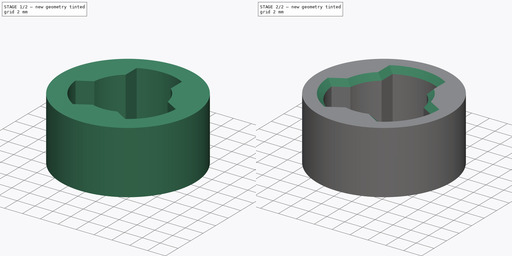
[diagram: build sequence overview — one tinted view per stage of 2, left to right]
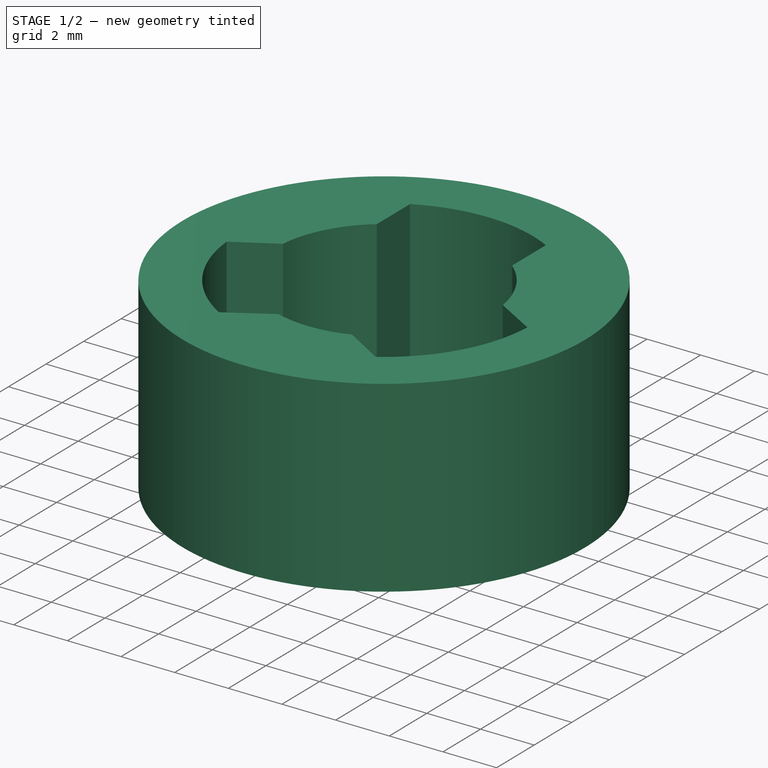
[diagram: stage 1 of 2 — iso view after this stage's code; geometry added in this stage tinted green]
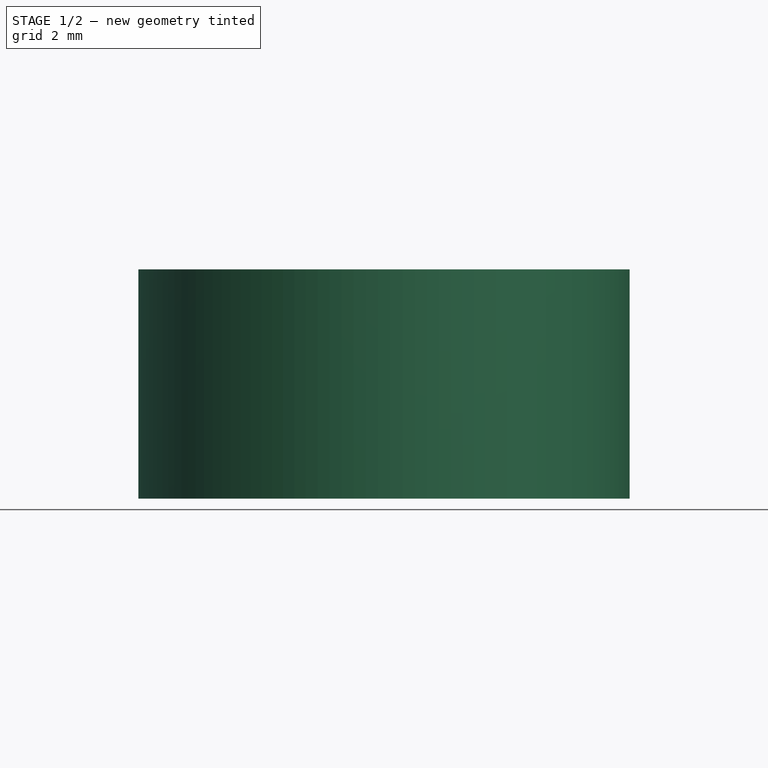
[diagram: stage 1 of 2 — front view after this stage's code; geometry added in this stage tinted green]
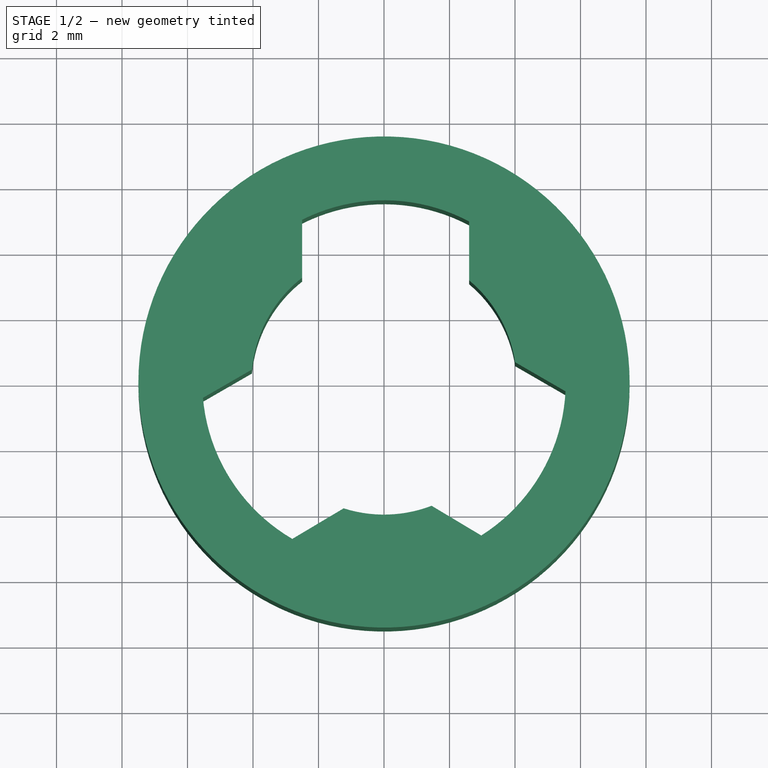
[diagram: stage 1 of 2 — top view after this stage's code; geometry added in this stage tinted green]
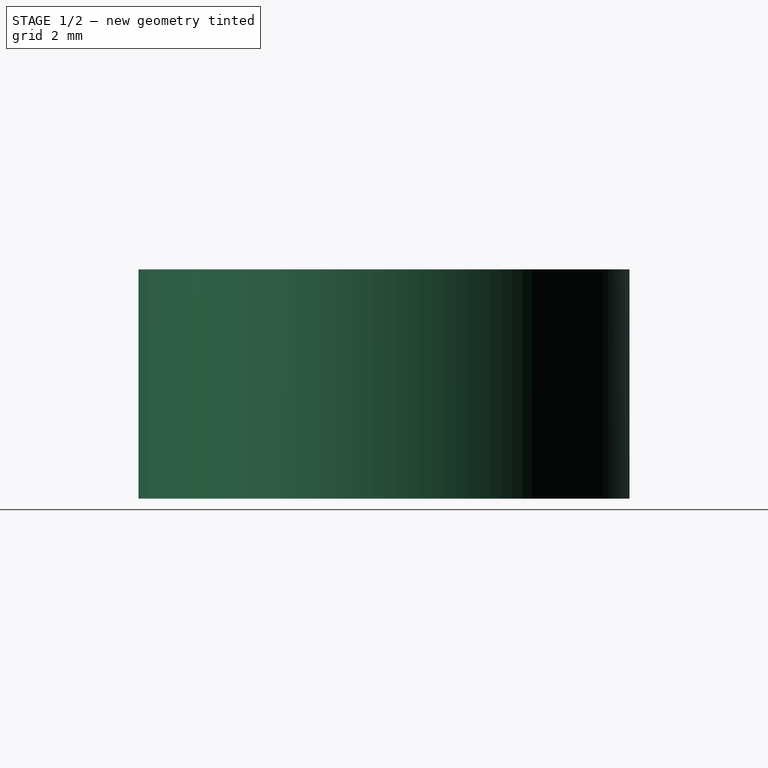
[diagram: stage 1 of 2 — right view after this stage's code; geometry added in this stage tinted green]
FCSTD DOCUMENT  (FreeCAD 0.19R24276 (Git))
Label: Knife_holder_bldc_part_2_v1_wide
License: All rights reserved
LicenseURL: http://en.wikipedia.org/wiki/All_rights_reserved
objects: Sketcher::SketchObject×1, PartDesign::Pad×1, PartDesign::Chamfer×1, PartDesign::Body×1
note: 6 computed .brp shape members not serialized (recipe doc carries the construction recipe); baked Part::Feature solids carry a one-line shape summary decoded from their .brp

FEATURE [Sketcher::SketchObject] Sketch
  FullyConstrained = false
  MapMode = 5
  Support = -> [XY_Plane]
  sketch-geometry (13):
    g0: ArcOfCircle CenterX=0 CenterY=0 CenterZ=0 NormalX=0 NormalY=0 NormalZ=1 AngleXU=0 Radius=4.05 StartAngle=2.23608 EndAngle=3.04749
    g1: ArcOfCircle CenterX=0 CenterY=0 CenterZ=0 NormalX=0 NormalY=0 NormalZ=1 AngleXU=0 Radius=5.55 StartAngle=1.08329 EndAngle=2.03807
    g2: LineSegment StartX=2.97035 StartY=-4.68823 StartZ=0 EndX=1.45426 EndY=-3.7799 EndZ=0
    g3: LineSegment StartX=4.00468 StartY=0.604177 StartZ=0 EndX=5.5427 EndY=-0.284484 EndZ=0
    g4: ArcOfCircle CenterX=0 CenterY=0 CenterZ=0 NormalX=0 NormalY=0 NormalZ=1 AngleXU=0 Radius=4.05 StartAngle=0.149739 EndAngle=0.873809
    g5: LineSegment StartX=-5.52889 StartY=-0.483634 StartZ=0 EndX=-4.03208 EndY=0.380567 EndZ=0
    g6: ArcOfCircle CenterX=0 CenterY=0 CenterZ=0 NormalX=0 NormalY=0 NormalZ=1 AngleXU=0 Radius=5.55 StartAngle=5.27713 EndAngle=6.2319
    g7: ArcOfCircle CenterX=0 CenterY=0 CenterZ=0 NormalX=0 NormalY=0 NormalZ=1 AngleXU=0 Radius=5.55 StartAngle=3.22884 EndAngle=4.18362
    g8: LineSegment StartX=-1.23227 StartY=-3.85798 StartZ=0 EndX=-2.79982 EndY=-4.79202 EndZ=0
    g9: ArcOfCircle CenterX=0 CenterY=0 CenterZ=0 NormalX=0 NormalY=0 NormalZ=1 AngleXU=0 Radius=4.05 StartAngle=4.40322 EndAngle=5.07967
    g10: LineSegment StartX=-2.5 StartY=3.1863 StartZ=0 EndX=-2.5 EndY=4.95505 EndZ=0
    g11: LineSegment StartX=2.59974 StartY=3.10546 StartZ=0 EndX=2.59974 EndY=4.90345 EndZ=0
    g12: Circle CenterX=0 CenterY=0 CenterZ=0 NormalX=0 NormalY=0 NormalZ=1 AngleXU=0 Radius=7.5
  constraints (34):
    c: Diameter(g0) = 8.1
    c: Coincident(g1,g0)
    c: Diameter(g1) = 11.1
    c: Coincident(g0,g-1)
    c: Coincident(g3,g6)
    c: PointOnObject(g3,g0)
    c: Equal(g0,g4)
    c: Coincident(g9,g2)
    c: Coincident(g0,g4)
    c: PointOnObject(g4,g3)
    c: Equal(g1,g6)
    c: Coincident(g7,g8)
    c: Coincident(g6,g2)
    c: Coincident(g1,g6)
    c: Equal(g1,g7)
    c: Coincident(g7,g5)
    c: Coincident(g1,g7)
    c: PointOnObject(g8,g0)
    c: Equal(g0,g9)
    c: Coincident(g0,g5)
    c: Coincident(g0,g9)
    c: PointOnObject(g9,g8)
    c: Coincident(g10,g0)
    c: Vertical(g10)
    c: Coincident(g1,g10)
    c: Coincident(g11,g4)
    c: Vertical(g11)
    c: Coincident(g1,g11)
    c: Distance(g1,g1) = 5.1
    c: DistanceX(g0,g0) = 2.5
    c: Coincident(g12,g0)
    c: Diameter(g12) = 15
    c: Distance(g2,g3) = 5.1
    c: Distance(g7,g5) = 5.1
FEATURE [PartDesign::Pad] Pad
  Direction = (1,1,1)
  Length = 7
  Length2 = 100
  Profile = -> Sketch
  Type = 0
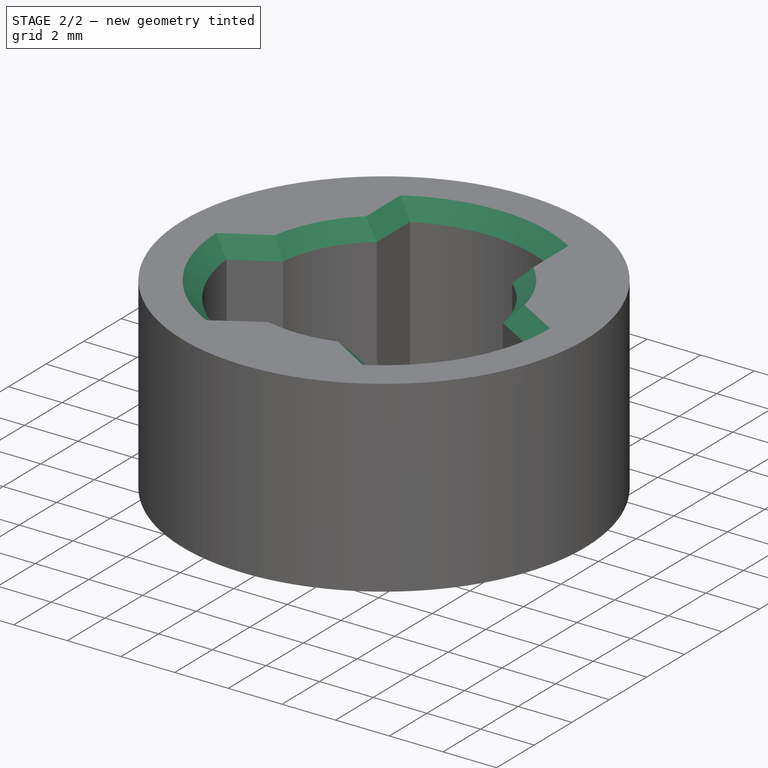
[diagram: stage 2 of 2 — iso view after this stage's code; geometry added in this stage tinted green]
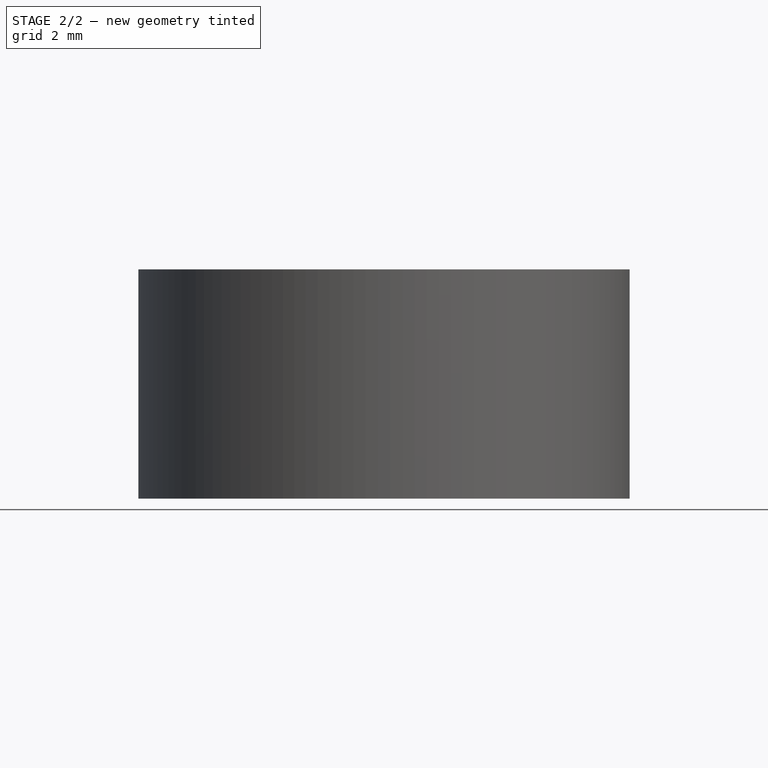
[diagram: stage 2 of 2 — front view after this stage's code; geometry added in this stage tinted green]
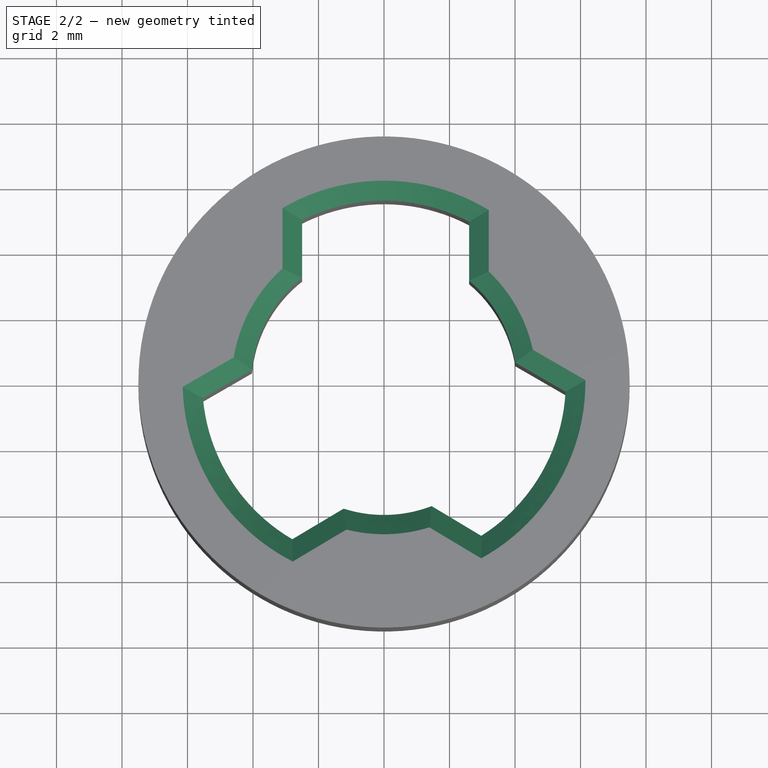
[diagram: stage 2 of 2 — top view after this stage's code; geometry added in this stage tinted green]
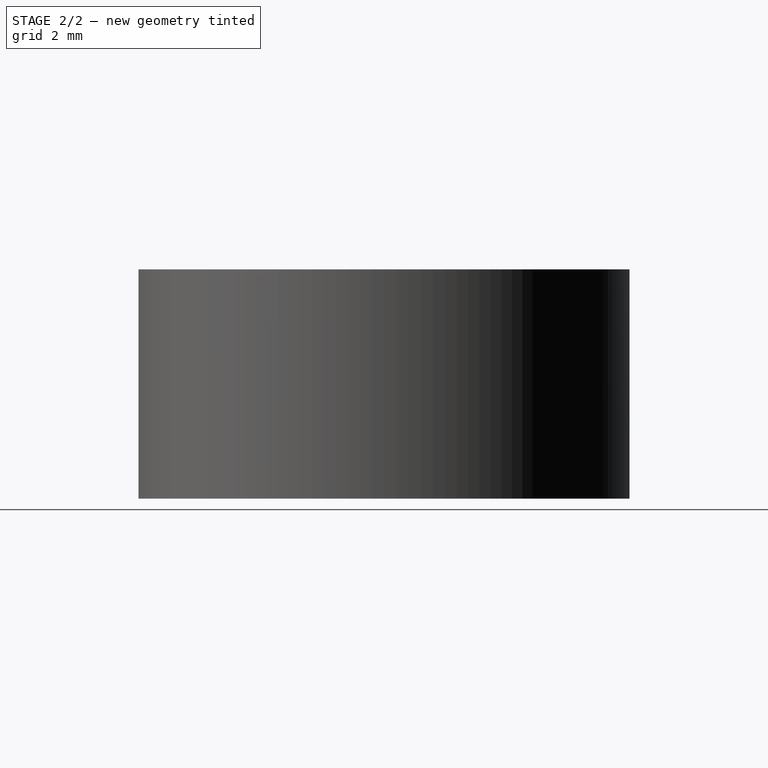
[diagram: stage 2 of 2 — right view after this stage's code; geometry added in this stage tinted green]
FEATURE [PartDesign::Chamfer] Chamfer
  Angle = 45
  Base = -> Pad [Edge39,Edge37,Edge34,Edge31,Edge28,Edge25,Edge22,Edge19,Edge16,Edge13,Edge10,Edge7]
  BaseFeature = -> Pad
  ChamferType = 0
  FlipDirection = false
  Size = 0.6
  Size2 = 1
  SupportTransform = false
FEATURE [PartDesign::Body] Body
  Group = -> [Sketch,Pad,Chamfer]
  Origin = -> Origin
  Tip = -> Chamfer
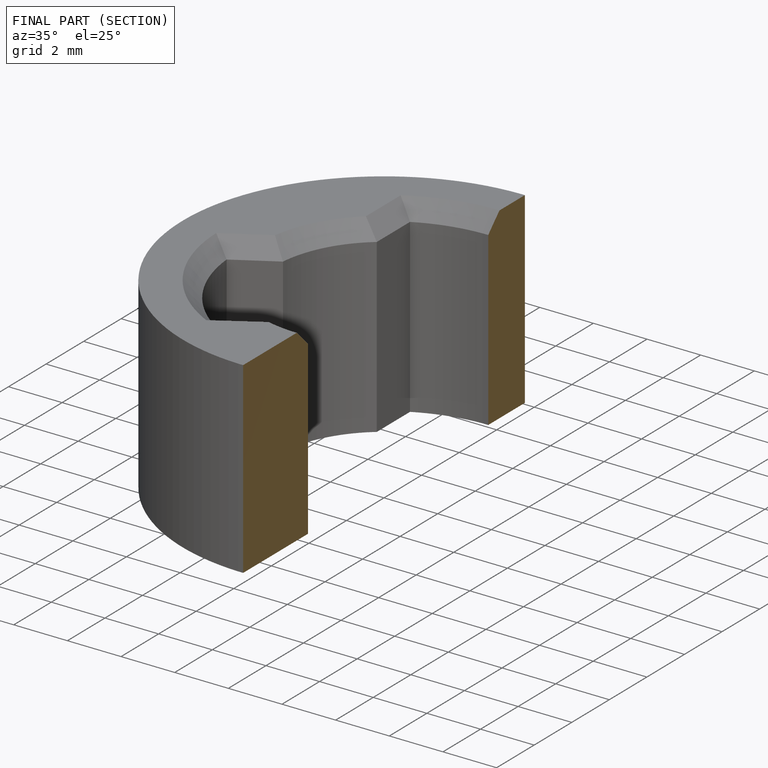
[diagram: finished part — half-section view (interior)]
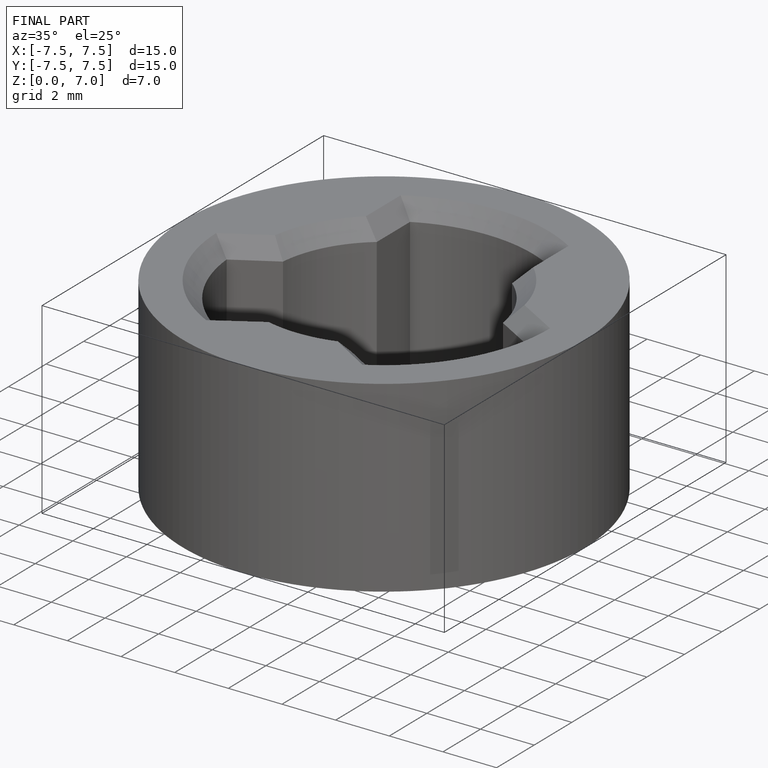
[diagram: finished part — iso view with bounding-box wireframe]
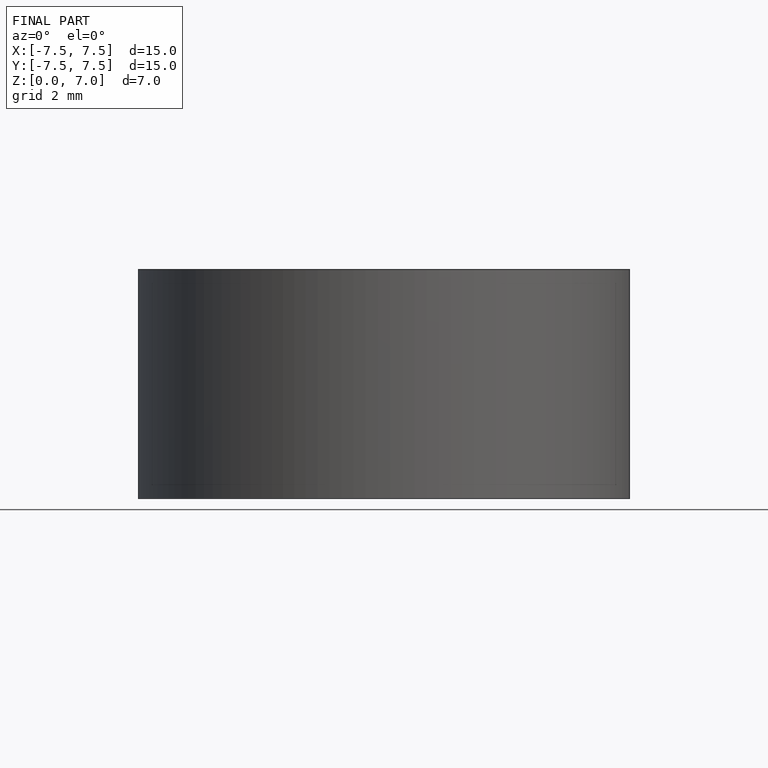
[diagram: finished part — front view with bounding-box wireframe]
